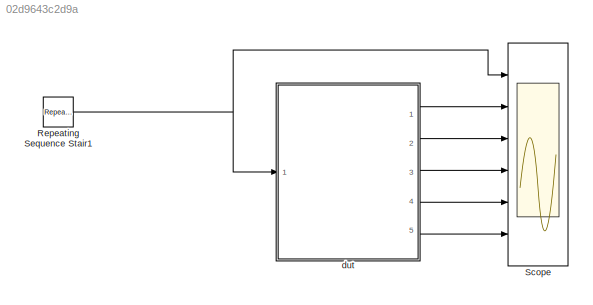
MODEL slx_02d9643c2d9a
KIND model
CONFIG AbsTol = auto
CONFIG FixedStep = auto
CONFIG MaxStep = auto
CONFIG MinStep = auto
CONFIG RelTol = 1e-3
CONFIG SampleTimeConstraint = Unconstrained
CONFIG Solver = ode45
CONFIG SolverMode = SingleTasking
CONFIG SolverName = ode45
CONFIG StartTime = 0.0
CONFIG StopTime = 520/2000
BLOCK [Reference] Repeating Sequence Stair1  REF=simulink/Sources/Repeating
Sequence
Stair
  Ports = [0, 1]
  SourceBlock = simulink/Sources/Repeating\nSequence\nStair
  SourceType = Repeating Sequence Stair
BLOCK [Scope] Scope
  NumInputPorts = 6
  Ports = [6]
  ScopeSpecificationString = Simulink.scopes.TimeScopeBlockCfg('CurrentConfiguration', extmgr.ConfigurationSet(extmgr.Configuration('Core','General UI',true),extmgr.Configuration('Core','Source UI',true),extmgr.Configuration('Sources','WiredSimulink',true,'DataLoggingSaveFormat','StructureWithTime','DataLoggingDecimation','1','DataLoggingDecimateData',true),extmgr.Configuration('Visuals','Time Domain',true,'SerializedDisplays...<+6451ch>
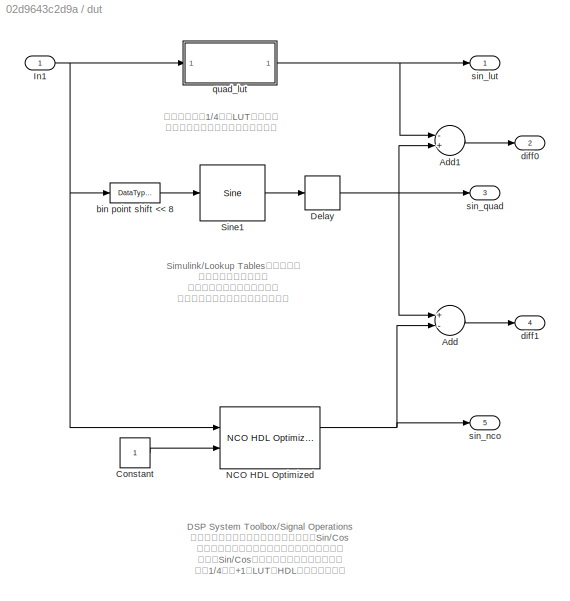
BLOCK [SubSystem] dut
  Ports = [1, 5]
  RequestExecContextInheritance = off
  Variant = off
BLOCK [Sum] dut/Add
  InputSameDT = off
  Inputs = +-
  OutDataTypeStr = Inherit: Inherit via internal rule
  Ports = [2, 1]
  SaturateOnIntegerOverflow = off
BLOCK [Sum] dut/Add1
  InputSameDT = off
  Inputs = -+
  OutDataTypeStr = Inherit: Inherit via internal rule
  Ports = [2, 1]
  SaturateOnIntegerOverflow = off
BLOCK [Constant] dut/Constant
  OutDataTypeStr = boolean
  SampleTime = -1
BLOCK [Delay] dut/Delay
  DelayLength = 4
  InputPortMap = u0
  Ports = [1, 1]
BLOCK [Inport] dut/In1
  IconDisplay = Port number
BLOCK [Reference] dut/NCO HDL Optimized  REF=dspsigops/NCO
HDL Optimized
  Ports = [2, 2]
  SourceBlock = dspsigops/NCO\nHDL Optimized
  SourceType = NCO HDL Optimized
BLOCK [Reference] dut/Sine1  REF=simulink/Lookup
Tables/Sine
  Ports = [1, 1]
  SourceBlock = simulink/Lookup\nTables/Sine
  SourceType = Sine and Cosine
BLOCK [DataTypeConversion] dut/bin point shift << 8
  ConvertRealWorld = Stored Integer (SI)
  OutDataTypeStr = fixdt(0,8,8)
  RndMeth = Nearest
  SaturateOnIntegerOverflow = off
BLOCK [Outport] dut/diff0
  IconDisplay = Port number
  Port = 2
BLOCK [Outport] dut/diff1
  IconDisplay = Port number
  Port = 4
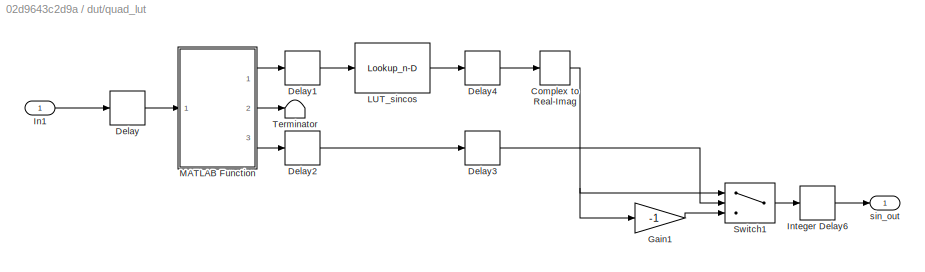
BLOCK [SubSystem] dut/quad_lut
  Ports = [1, 1]
  RequestExecContextInheritance = off
  Variant = off
BLOCK [ComplexToRealImag] dut/quad_lut/Complex to Real-Imag
  Output = Imag
  Ports = [1, 1]
BLOCK [Delay] dut/quad_lut/Delay
  DelayLength = 1
  InputPortMap = u0
  Ports = [1, 1]
  UserDataPersistent = on
BLOCK [Delay] dut/quad_lut/Delay1
  DelayLength = 1
  InputPortMap = u0
  Ports = [1, 1]
  UserDataPersistent = on
BLOCK [Delay] dut/quad_lut/Delay2
  DelayLength = 1
  InputPortMap = u0
  Ports = [1, 1]
  UserDataPersistent = on
BLOCK [Delay] dut/quad_lut/Delay3
  DelayLength = 1
  InputPortMap = u0
  Ports = [1, 1]
  UserDataPersistent = on
BLOCK [Delay] dut/quad_lut/Delay4
  DelayLength = 1
  InputPortMap = u0
  Ports = [1, 1]
  UserDataPersistent = on
BLOCK [Gain] dut/quad_lut/Gain1
  Gain = -1
  ParamDataTypeStr = fixdt(1,2,0)
  SaturateOnIntegerOverflow = off
BLOCK [Inport] dut/quad_lut/In1
  IconDisplay = Port number
BLOCK [Delay] dut/quad_lut/Integer Delay6
  DelayLength = 1
  InputPortMap = u0
  Ports = [1, 1]
  UserDataPersistent = on
BLOCK [Lookup_n-D] dut/quad_lut/LUT_sincos
  BreakpointsForDimension1 = 0:64
  ExtrapMethod = Clip
  IndexSearchMethod = Evenly spaced points
  InterpMethod = Flat
  LockScale = on
  NumberOfTableDimensions = 1
  OutDataTypeStr = fixdt(1,16,14)
  Ports = [1, 1]
  RndMeth = Simplest
  Table = exp(j*2*pi*(0:64)/256)
  UseLastTableValue = on
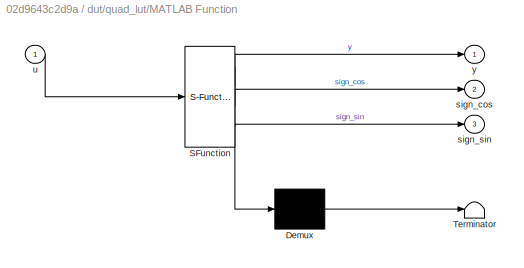
BLOCK [SubSystem] dut/quad_lut/MATLAB Function
  ErrorFcn = Stateflow.Translate.translate
  PermitHierarchicalResolution = ExplicitOnly
  Ports = [1, 3]
  RequestExecContextInheritance = off
  SFBlockType = MATLAB Function
  TreatAsAtomicUnit = on
  Variant = off
BLOCK [Demux] dut/quad_lut/MATLAB Function/ Demux 
  Outputs = 1
  Ports = [1, 1]
BLOCK [S-Function] dut/quad_lut/MATLAB Function/ SFunction 
  EnableBusSupport = on
  FunctionName = sf_sfun
  PortCounts = [1 4]
  Ports = [1, 4]
  SFunctionDeploymentMode = off
  Tag = Stateflow S-Function slb_ROM_LUT_Sin 1
BLOCK [Terminator] dut/quad_lut/MATLAB Function/ Terminator 
BLOCK [Outport] dut/quad_lut/MATLAB Function/sign_cos
  IconDisplay = Port number
  Port = 2
BLOCK [Outport] dut/quad_lut/MATLAB Function/sign_sin
  IconDisplay = Port number
  Port = 3
BLOCK [Inport] dut/quad_lut/MATLAB Function/u
  IconDisplay = Port number
BLOCK [Outport] dut/quad_lut/MATLAB Function/y
  IconDisplay = Port number
BLOCK [Switch] dut/quad_lut/Switch1
  Criteria = u2 ~= 0
  InputSameDT = off
  SaturateOnIntegerOverflow = off
BLOCK [Terminator] dut/quad_lut/Terminator
BLOCK [Outport] dut/quad_lut/sin_out
  IconDisplay = Port number
BLOCK [Outport] dut/sin_lut
  IconDisplay = Port number
BLOCK [Outport] dut/sin_nco
  IconDisplay = Port number
  Port = 5
BLOCK [Outport] dut/sin_quad
  IconDisplay = Port number
  Port = 3
ANNOTATION dut: DSP System Toolbox/Signal Operations ライブラリにあるブロックです。通常はSin/Cos 信号生成用に用いられますが、パラメータ設定 によりSin/Cos計算させることも可能です。 長さ1/4周期+1のLUTでHDL生成されます。
ANNOTATION dut: Simulink/Lookup Tablesライブラリ にあるブロックです。 パイプライン挿入する場合は ライブラリリンクを外して下さい。
ANNOTATION dut: マニュアルで1/4長のLUTを作成し 符号を切り替える処理を書きます。
NET Repeating Sequence Stair1:1 -> Scope:1, dut:1
LINE dut/Add1:1 -> dut/diff0:1
LINE dut/Add:1 -> dut/diff1:1
LINE dut/Constant:1 -> dut/NCO HDL Optimized:2
NET dut/Delay:1 -> dut/Add1:2, dut/Add:1, dut/sin_quad:1
NET dut/In1:1 -> dut/NCO HDL Optimized:1, dut/bin point shift << 8:1, dut/quad_lut:1
NET dut/NCO HDL Optimized:1 -> dut/Add:2, dut/sin_nco:1
LINE dut/Sine1:1 -> dut/Delay:1
LINE dut/bin point shift << 8:1 -> dut/Sine1:1
NET dut/quad_lut/Complex to Real-Imag:1 -> dut/quad_lut/Gain1:1, dut/quad_lut/Switch1:1
LINE dut/quad_lut/Delay1:1 -> dut/quad_lut/LUT_sincos:1
LINE dut/quad_lut/Delay2:1 -> dut/quad_lut/Delay3:1
LINE dut/quad_lut/Delay3:1 -> dut/quad_lut/Switch1:2
LINE dut/quad_lut/Delay4:1 -> dut/quad_lut/Complex to Real-Imag:1
LINE dut/quad_lut/Delay:1 -> dut/quad_lut/MATLAB Function:1
LINE dut/quad_lut/Gain1:1 -> dut/quad_lut/Switch1:3
LINE dut/quad_lut/In1:1 -> dut/quad_lut/Delay:1
LINE dut/quad_lut/Integer Delay6:1 -> dut/quad_lut/sin_out:1
LINE dut/quad_lut/LUT_sincos:1 -> dut/quad_lut/Delay4:1
LINE dut/quad_lut/MATLAB Function:1 -> dut/quad_lut/Delay1:1
LINE dut/quad_lut/MATLAB Function:2 -> dut/quad_lut/Terminator:1
LINE dut/quad_lut/MATLAB Function:3 -> dut/quad_lut/Delay2:1
LINE dut/quad_lut/Switch1:1 -> dut/quad_lut/Integer Delay6:1
NET dut/quad_lut:1 -> dut/Add1:1, dut/sin_lut:1
LINE dut:1 -> Scope:2
LINE dut:2 -> Scope:3
LINE dut:3 -> Scope:4
LINE dut:4 -> Scope:5
LINE dut:5 -> Scope:6
note: NET lines group one-source signal fan-out (src -> all destinations, sorted); 1:1 wires keep LINE
CHART dut/quad_lut/MATLAB Function states=1 transitions=1
  STATE_LABEL 'eML_blk_kernel()'
  STATE_LABEL 'SCRIPT:\nfunction [y, sign_cos, sign_sin] = fcn(u)\n%#codegen\nnumType = numerictype(0,7,0);\n\nif (u>=0 && u < 64)\n\tsign_cos = true;\n\tsign_sin = true;\n\ty = fi(u,numType);\nelseif (u >= 64 && u < 128)\n\tsign_cos = false;\n\tsign_sin = true;\n\ty = fi(128-u,numType);\nelseif (u >= 128 && u < 192)\n\tsign_cos = false;\n\tsign_sin = false;\n\ty = fi(u-128,numType);\nelse\t% u >= 192 && u < 255\n\tsign_cos = true;\n\tsign_si...<+79ch>'
